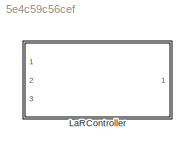
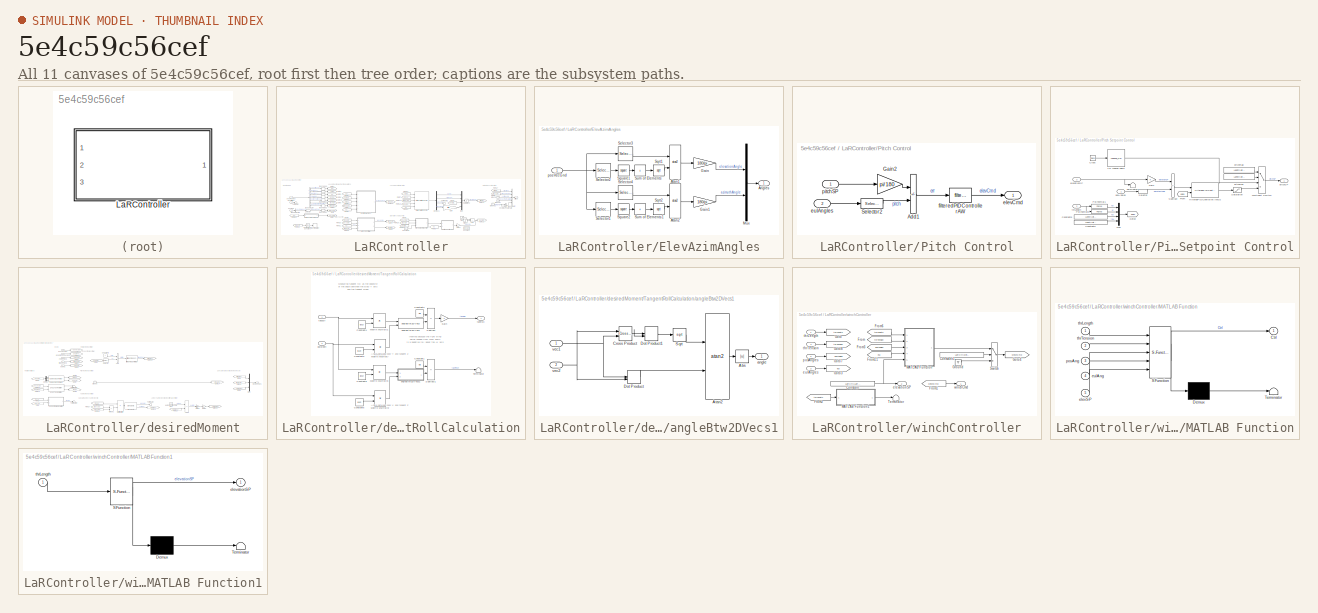
[diagram: thumbnail index - all 11 canvases of the model, root first then tree order]
MODEL slx_5e4c59c56cef
KIND library
CONFIG AbsTol = auto
CONFIG EnableMultiTasking = off
CONFIG FixedStep = auto
CONFIG MaxStep = auto
CONFIG MinStep = auto
CONFIG RelTol = 1e-3
CONFIG SampleTimeConstraint = Unconstrained
CONFIG SolverName = VariableStepAuto
CONFIG StartTime = 0.0
CONFIG StopTime = 10.0
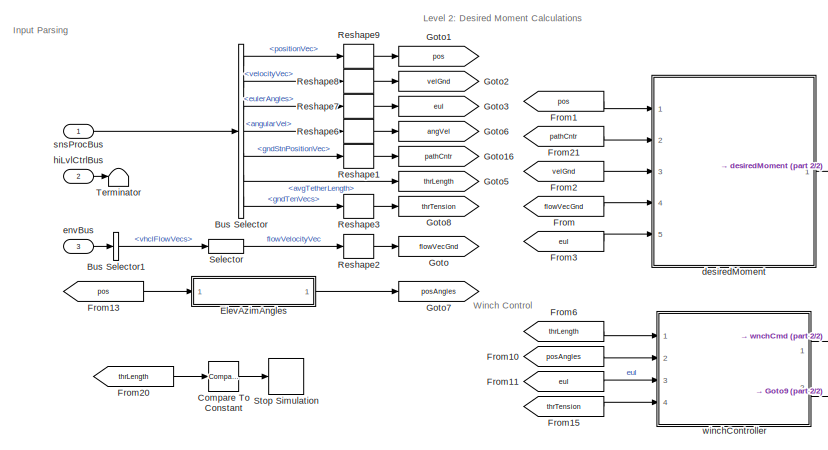
[diagram: LaRController - part 1/2, left side, full height]
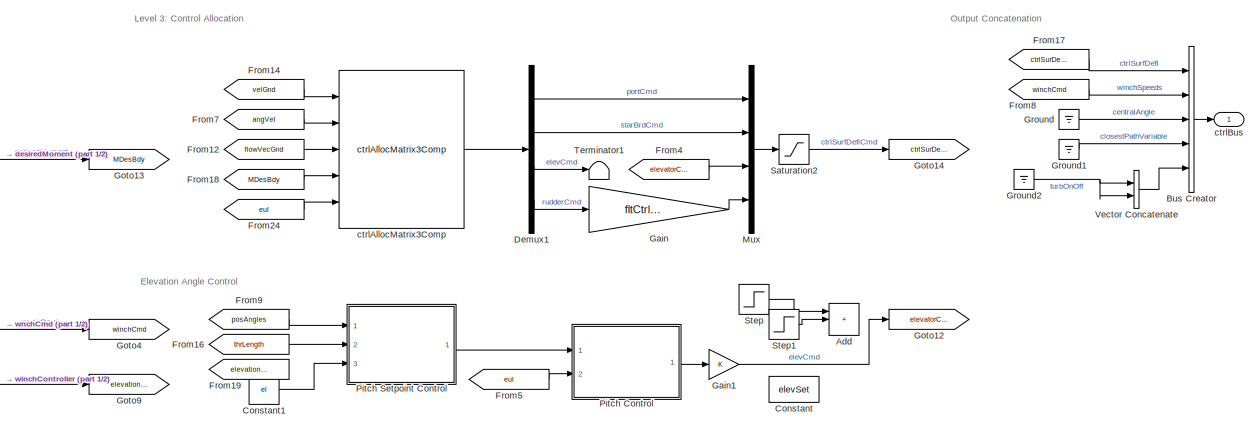
[diagram: LaRController - part 2/2, right side, full height]
BLOCK [SubSystem] LaRController
  InitFcn = initializeBussesFromBlock(gcb)
  LoadFcn = initializeBussesFromBlock(gcb)
  MinAlgLoopOccurrences = on
  Ports = [3, 1]
  RequestExecContextInheritance = off
  StartFcn = initializeBussesFromBlock(gcb)
  VariantControl = strcmpi(FLIGHTCONTROLLER,'LaRController')
BLOCK [Sum] LaRController/Add
  Commented = on
  IconShape = rectangular
  Inputs = +++
  Ports = [3, 1]
BLOCK [BusCreator] LaRController/Bus Creator
  DisplayOption = bar
  InheritFromInputs = off
  Inputs = 5
  OutDataTypeStr = Bus: fltCtrlBus
  Ports = [5, 1]
BLOCK [BusSelector] LaRController/Bus Selector
  OutputSignals = positionVec,velocityVec,eulerAngles,angularVel,gndStnPositionVec,avgTetherLength,gndTenVecs
  Ports = [1, 7]
BLOCK [BusSelector] LaRController/Bus Selector1
  OutputSignals = vhclFlowVecs
  Ports = [1, 1]
BLOCK [Reference] LaRController/Compare To Constant  REF=simulink/Logic and Bit
Operations/Compare
To Constant
  Ports = [1, 1]
  SourceBlock = simulink/Logic and Bit\nOperations/Compare\nTo Constant
  SourceProductBaseCode = SL
  SourceType = Compare To Constant
BLOCK [Constant] LaRController/Constant
  Value = elevSet
BLOCK [Constant] LaRController/Constant1
  Value = el
BLOCK [Demux] LaRController/Demux1
  Ports = [1, 4]
BLOCK [SubSystem] LaRController/ElevAzimAngles
  Ports = [1, 1]
  RequestExecContextInheritance = off
BLOCK [Outport] LaRController/ElevAzimAngles/Angles
BLOCK [Trigonometry] LaRController/ElevAzimAngles/Atan1
  Operator = atan2
  Ports = [2, 1]
BLOCK [Trigonometry] LaRController/ElevAzimAngles/Atan2
  Operator = atan2
  Ports = [2, 1]
BLOCK [Gain] LaRController/ElevAzimAngles/Gain
  Gain = 180/pi
BLOCK [Gain] LaRController/ElevAzimAngles/Gain1
  Gain = 180/pi
BLOCK [Mux] LaRController/ElevAzimAngles/Mux
  DisplayOption = bar
  Inputs = 2
  Ports = [2, 1]
BLOCK [Selector] LaRController/ElevAzimAngles/Selector1
  IndexOptions = Index vector (dialog)
  Indices = 1
  InputPortWidth = 3
  OutputSizes = 1
  Ports = [1, 1]
BLOCK [Selector] LaRController/ElevAzimAngles/Selector2
  IndexOptions = Index vector (dialog)
  Indices = [1 2]
  InputPortWidth = 3
  OutputSizes = 1
  Ports = [1, 1]
BLOCK [Selector] LaRController/ElevAzimAngles/Selector3
  IndexOptions = Index vector (dialog)
  Indices = 3
  InputPortWidth = 3
  OutputSizes = 1
  Ports = [1, 1]
BLOCK [Selector] LaRController/ElevAzimAngles/Selector4
  IndexOptions = Index vector (dialog)
  Indices = 2
  InputPortWidth = 3
  OutputSizes = 1
  Ports = [1, 1]
BLOCK [Sqrt] LaRController/ElevAzimAngles/Sqrt1
BLOCK [Sqrt] LaRController/ElevAzimAngles/Sqrt2
BLOCK [Math] LaRController/ElevAzimAngles/Square1
  Operator = square
  Ports = [1, 1]
  SignedPower = on
BLOCK [Math] LaRController/ElevAzimAngles/Square2
  Operator = square
  Ports = [1, 1]
  SignedPower = on
BLOCK [Sum] LaRController/ElevAzimAngles/Sum of Elements
  IconShape = rectangular
  Inputs = +
  Ports = [1, 1]
BLOCK [Sum] LaRController/ElevAzimAngles/Sum of Elements1
  IconShape = rectangular
  Inputs = +
  Ports = [1, 1]
BLOCK [Inport] LaRController/ElevAzimAngles/posVecGnd
BLOCK [From] LaRController/From
  GotoTag = flowVecGnd
BLOCK [From] LaRController/From1
  GotoTag = pos
BLOCK [From] LaRController/From10
  GotoTag = posAngles
BLOCK [From] LaRController/From11
  GotoTag = eul
BLOCK [From] LaRController/From12
  GotoTag = flowVecGnd
BLOCK [From] LaRController/From13
  GotoTag = pos
BLOCK [From] LaRController/From14
  GotoTag = velGnd
BLOCK [From] LaRController/From15
  GotoTag = thrTension
BLOCK [From] LaRController/From16
  GotoTag = thrLength
BLOCK [From] LaRController/From17
  GotoTag = ctrlSurDefl
BLOCK [From] LaRController/From18
  GotoTag = MDesBdy
BLOCK [From] LaRController/From19
  GotoTag = elevationSP
BLOCK [From] LaRController/From2
  GotoTag = velGnd
BLOCK [From] LaRController/From20
  GotoTag = thrLength
BLOCK [From] LaRController/From21
  GotoTag = pathCntr
BLOCK [From] LaRController/From24
  GotoTag = eul
BLOCK [From] LaRController/From3
  GotoTag = eul
BLOCK [From] LaRController/From4
  GotoTag = elevatorCmd
BLOCK [From] LaRController/From5
  GotoTag = eul
BLOCK [From] LaRController/From6
  GotoTag = thrLength
BLOCK [From] LaRController/From7
  GotoTag = angVel
BLOCK [From] LaRController/From8
  GotoTag = winchCmd
BLOCK [From] LaRController/From9
  GotoTag = posAngles
BLOCK [Gain] LaRController/Gain
  Gain = fltCtrl.rudderGain.Value
BLOCK [Gain] LaRController/Gain1
BLOCK [Goto] LaRController/Goto
  GotoTag = flowVecGnd
BLOCK [Goto] LaRController/Goto1
  GotoTag = pos
BLOCK [Goto] LaRController/Goto12
  GotoTag = elevatorCmd
BLOCK [Goto] LaRController/Goto13
  GotoTag = MDesBdy
BLOCK [Goto] LaRController/Goto14
  GotoTag = ctrlSurDefl
BLOCK [Goto] LaRController/Goto16
  GotoTag = pathCntr
BLOCK [Goto] LaRController/Goto2
  GotoTag = velGnd
BLOCK [Goto] LaRController/Goto3
  GotoTag = eul
BLOCK [Goto] LaRController/Goto4
  GotoTag = winchCmd
BLOCK [Goto] LaRController/Goto5
  GotoTag = thrLength
BLOCK [Goto] LaRController/Goto6
  GotoTag = angVel
BLOCK [Goto] LaRController/Goto7
  GotoTag = posAngles
BLOCK [Goto] LaRController/Goto8
  GotoTag = thrTension
BLOCK [Goto] LaRController/Goto9
  GotoTag = elevationSP
BLOCK [Ground] LaRController/Ground
BLOCK [Ground] LaRController/Ground1
BLOCK [Ground] LaRController/Ground2
BLOCK [Mux] LaRController/Mux
  DisplayOption = bar
  Ports = [4, 1]
BLOCK [SubSystem] LaRController/Pitch Control
  Ports = [2, 1]
  RequestExecContextInheritance = off
BLOCK [Sum] LaRController/Pitch Control/Add1
  IconShape = rectangular
  Inputs = -+
  Ports = [2, 1]
BLOCK [Gain] LaRController/Pitch Control/Gain2
  Gain = pi/180
BLOCK [Selector] LaRController/Pitch Control/Selector2
  IndexOptions = Index vector (dialog)
  Indices = 2
  InputPortWidth = 3
  OutputSizes = 1
  Ports = [1, 1]
BLOCK [Outport] LaRController/Pitch Control/elevCmd
BLOCK [Inport] LaRController/Pitch Control/eulAngles
  Port = 2
BLOCK [Reference] LaRController/Pitch Control/filteredPIDControllerAW  REF=filteredPIDControllerAW_ul/filteredPIDControllerAW
  Ports = [1, 1]
  SourceBlock = filteredPIDControllerAW_ul/filteredPIDControllerAW
BLOCK [Inport] LaRController/Pitch Control/pitchSP
BLOCK [SubSystem] LaRController/Pitch Setpoint Control
  Ports = [3, 1]
  RequestExecContextInheritance = off
BLOCK [Lookup_n-D] LaRController/Pitch Setpoint Control/1-D Lookup Table
  BreakpointsForDimension1 = LaRCtrl.pitchTime.Value
  InputPortMap = u0
  InternalRulePriority = Speed
  InterpMethod = Flat
  NumberOfTableDimensions = 1
  Ports = [1, 1]
  RndMeth = Simplest
  Table = LaRCtrl.pitchLookup.Value
BLOCK [Clock] LaRController/Pitch Setpoint Control/Clock
BLOCK [Constant] LaRController/Pitch Setpoint Control/Constant5
  Value = LaRCtrl.pitchSP.kd.Value
BLOCK [Constant] LaRController/Pitch Setpoint Control/Constant6
  Value = LaRCtrl.pitchSP.tau.Value
BLOCK [From] LaRController/Pitch Setpoint Control/From
  GotoTag = gains
BLOCK [Gain] LaRController/Pitch Setpoint Control/Gain
BLOCK [Goto] LaRController/Pitch Setpoint Control/Goto2
  GotoTag = gains
BLOCK [MultiPortSwitch] LaRController/Pitch Setpoint Control/Multiport Switch
  DataPortIndices = {0,1,2}
  DataPortOrder = Specify indices
  InputSameDT = off
  Inputs = 2
  Ports = [4, 1]
  SaturateOnIntegerOverflow = off
BLOCK [Mux] LaRController/Pitch Setpoint Control/Mux
  DisplayOption = bar
  Ports = [4, 1]
BLOCK [Polyval] LaRController/Pitch Setpoint Control/Polynomial1
  Coefs = [LaRCtrl.pitchSPkpSlope.Value LaRCtrl.pitchSPkpInt.Value]
BLOCK [Polyval] LaRController/Pitch Setpoint Control/Polynomial2
  Coefs = [LaRCtrl.pitchSPkiSlope.Value LaRCtrl.pitchSPkiInt.Value]
BLOCK [Saturate] LaRController/Pitch Setpoint Control/Saturation
  LowerLimit = LaRCtrl.pitchAngleMax.lowerLimit.Value
  UpperLimit = LaRCtrl.pitchAngleMax.upperLimit.Value
BLOCK [Selector] LaRController/Pitch Setpoint Control/Selector
  IndexOptions = Index vector (dialog)
  Indices = 1
  InputPortWidth = 2
  OutputSizes = 1
  Ports = [1, 1]
BLOCK [Sum] LaRController/Pitch Setpoint Control/Subtract
  IconShape = rectangular
  Inputs = +-
  Ports = [2, 1]
BLOCK [Terminator] LaRController/Pitch Setpoint Control/Terminator2
BLOCK [Inport] LaRController/Pitch Setpoint Control/elevationSP
  Port = 3
BLOCK [Reference] LaRController/Pitch Setpoint Control/filteredPIDControllerAWGS  REF=filteredPIDControllerAWGS_ul/filteredPIDControllerAWGS
  Ports = [2, 1]
  SourceBlock = filteredPIDControllerAWGS_ul/filteredPIDControllerAWGS
BLOCK [Constant] LaRController/Pitch Setpoint Control/pitchDes
  Value = LaRCtrl.pitchConst.Value
BLOCK [Constant] LaRController/Pitch Setpoint Control/pitchFlag
  Value = LaRCtrl.pitchCtrl.Value
BLOCK [Outport] LaRController/Pitch Setpoint Control/pitchSP
BLOCK [Inport] LaRController/Pitch Setpoint Control/posAngles
BLOCK [Inport] LaRController/Pitch Setpoint Control/thrLength
  Port = 2
BLOCK [Reshape] LaRController/Reshape1
  OutputDimensionality = Column vector (2-D)
  Ports = [1, 1]
BLOCK [Reshape] LaRController/Reshape2
  OutputDimensionality = Column vector (2-D)
  Ports = [1, 1]
BLOCK [Reshape] LaRController/Reshape3
  OutputDimensionality = Column vector (2-D)
  Ports = [1, 1]
BLOCK [Reshape] LaRController/Reshape6
  OutputDimensionality = Column vector (2-D)
  Ports = [1, 1]
BLOCK [Reshape] LaRController/Reshape7
  OutputDimensionality = Column vector (2-D)
  Ports = [1, 1]
BLOCK [Reshape] LaRController/Reshape8
  OutputDimensionality = Column vector (2-D)
  Ports = [1, 1]
BLOCK [Reshape] LaRController/Reshape9
  OutputDimensionality = Column vector (2-D)
  Ports = [1, 1]
BLOCK [Saturate] LaRController/Saturation2
  LowerLimit = LaRCtrl.controlSigMax.lowerLimit.Value
  UpperLimit = LaRCtrl.controlSigMax.upperLimit.Value
BLOCK [Selector] LaRController/Selector
  IndexOptions = Select all,Index vector (dialog)
  Indices = [1 3],5
  InputPortWidth = 3
  NumberOfDimensions = 2
  OutputSizes = 1,1
  Ports = [1, 1]
BLOCK [Step] LaRController/Step
  After = 0
  Commented = on
  SampleTime = 0
  Time = 200
BLOCK [Step] LaRController/Step1
  After = 0
  Commented = on
  SampleTime = 0
  Time = 210
BLOCK [Stop] LaRController/Stop Simulation
BLOCK [Terminator] LaRController/Terminator
BLOCK [Terminator] LaRController/Terminator1
BLOCK [Concatenate] LaRController/Vector Concatenate
  Ports = [2, 1]
BLOCK [Reference] LaRController/ctrlAllocMatrix3Comp  REF=ctrlAllocMatrix3Comp_cl/ctrlAllocMatrix3Comp
  Ports = [5, 1]
  SourceBlock = ctrlAllocMatrix3Comp_cl/ctrlAllocMatrix3Comp
BLOCK [Outport] LaRController/ctrlBus
  OutDataTypeStr = Bus: fltCtrlBus
  VectorParamsAs1DForOutWhenUnconnected = off
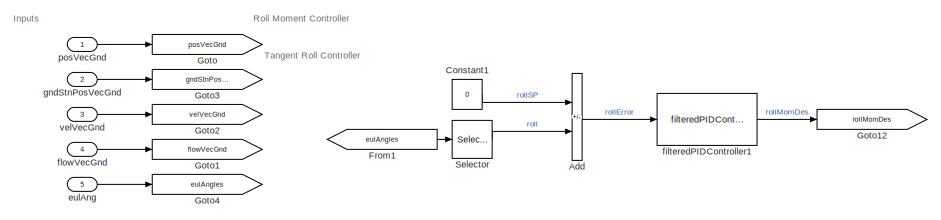
[diagram: LaRController/desiredMoment - part 1/4, top center region]
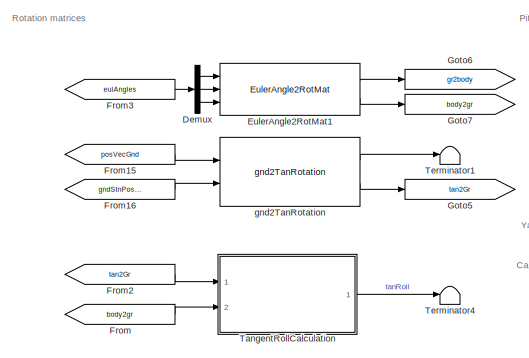
[diagram: LaRController/desiredMoment - part 2/4, middle left region]
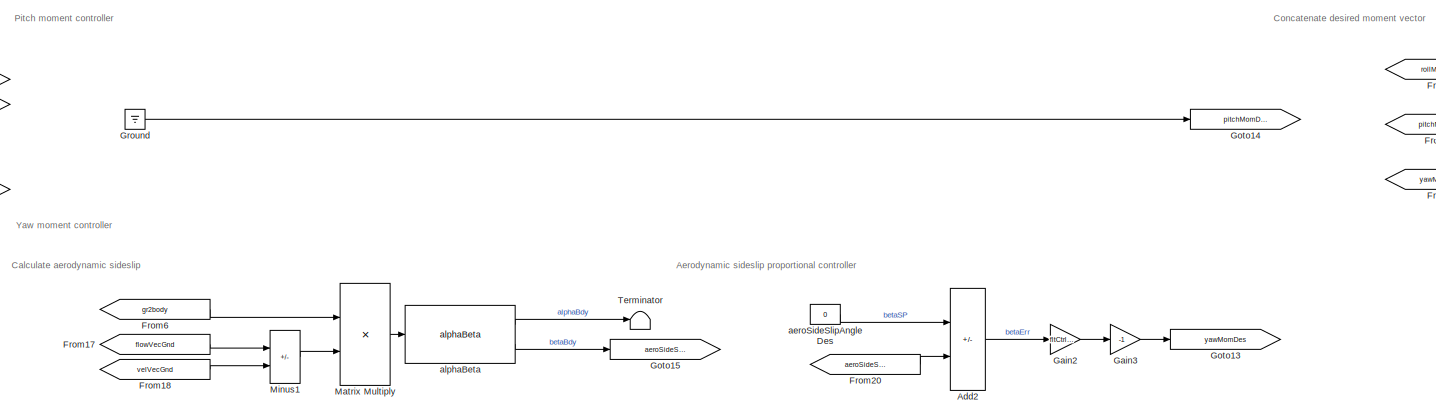
[diagram: LaRController/desiredMoment - part 3/4, bottom center region]
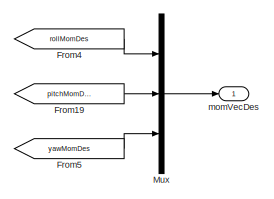
[diagram: LaRController/desiredMoment - part 4/4, middle right region]
BLOCK [SubSystem] LaRController/desiredMoment
  Ports = [5, 1]
  RequestExecContextInheritance = off
BLOCK [Sum] LaRController/desiredMoment/Add
  IconShape = rectangular
  Inputs = +-
  Ports = [2, 1]
BLOCK [Sum] LaRController/desiredMoment/Add2
  IconShape = rectangular
  Inputs = +-
  Ports = [2, 1]
BLOCK [Constant] LaRController/desiredMoment/Constant1
  Value = 0
BLOCK [Demux] LaRController/desiredMoment/Demux
  Outputs = 3
  Ports = [1, 3]
BLOCK [Reference] LaRController/desiredMoment/EulerAngle2RotMat1  REF=eulAng2RotMat_ul/EulerAngle2RotMat
  Ports = [3, 2]
  SourceBlock = eulAng2RotMat_ul/EulerAngle2RotMat
  SourceType = SubSystem
BLOCK [From] LaRController/desiredMoment/From
  GotoTag = body2gr
BLOCK [From] LaRController/desiredMoment/From1
  GotoTag = eulAngles
BLOCK [From] LaRController/desiredMoment/From15
  GotoTag = posVecGnd
BLOCK [From] LaRController/desiredMoment/From16
  GotoTag = gndStnPosVecGnd
BLOCK [From] LaRController/desiredMoment/From17
  GotoTag = flowVecGnd
BLOCK [From] LaRController/desiredMoment/From18
  GotoTag = velVecGnd
BLOCK [From] LaRController/desiredMoment/From19
  GotoTag = pitchMomDes
BLOCK [From] LaRController/desiredMoment/From2
  GotoTag = tan2Gr
BLOCK [From] LaRController/desiredMoment/From20
  GotoTag = aeroSideSlipAngle
BLOCK [From] LaRController/desiredMoment/From3
  GotoTag = eulAngles
BLOCK [From] LaRController/desiredMoment/From4
  GotoTag = rollMomDes
BLOCK [From] LaRController/desiredMoment/From5
  GotoTag = yawMomDes
BLOCK [From] LaRController/desiredMoment/From6
  GotoTag = gr2body
BLOCK [Gain] LaRController/desiredMoment/Gain2
  Gain = fltCtrl.yawMoment.kp.Value
BLOCK [Gain] LaRController/desiredMoment/Gain3
  Gain = -1
BLOCK [Goto] LaRController/desiredMoment/Goto
  GotoTag = posVecGnd
BLOCK [Goto] LaRController/desiredMoment/Goto1
  GotoTag = flowVecGnd
BLOCK [Goto] LaRController/desiredMoment/Goto12
  GotoTag = rollMomDes
BLOCK [Goto] LaRController/desiredMoment/Goto13
  GotoTag = yawMomDes
BLOCK [Goto] LaRController/desiredMoment/Goto14
  GotoTag = pitchMomDes
BLOCK [Goto] LaRController/desiredMoment/Goto15
  GotoTag = aeroSideSlipAngle
BLOCK [Goto] LaRController/desiredMoment/Goto2
  GotoTag = velVecGnd
BLOCK [Goto] LaRController/desiredMoment/Goto3
  GotoTag = gndStnPosVecGnd
BLOCK [Goto] LaRController/desiredMoment/Goto4
  GotoTag = eulAngles
BLOCK [Goto] LaRController/desiredMoment/Goto5
  GotoTag = tan2Gr
BLOCK [Goto] LaRController/desiredMoment/Goto6
  GotoTag = gr2body
BLOCK [Goto] LaRController/desiredMoment/Goto7
  GotoTag = body2gr
BLOCK [Ground] LaRController/desiredMoment/Ground
BLOCK [Product] LaRController/desiredMoment/Matrix Multiply
  Multiplication = Matrix(*)
  Ports = [2, 1]
BLOCK [Sum] LaRController/desiredMoment/Minus1
  IconShape = rectangular
  Inputs = +-
  Ports = [2, 1]
BLOCK [Mux] LaRController/desiredMoment/Mux
  DisplayOption = bar
  Inputs = 3
  Ports = [3, 1]
BLOCK [Selector] LaRController/desiredMoment/Selector
  IndexOptions = Index vector (dialog)
  Indices = 1
  InputPortWidth = 3
  OutputSizes = 1
  Ports = [1, 1]
BLOCK [SubSystem] LaRController/desiredMoment/TangentRollCalculation
  Ports = [2, 1]
  RequestExecContextInheritance = off
BLOCK [Constant] LaRController/desiredMoment/TangentRollCalculation/Constant1
  Value = pi/2
BLOCK [Constant] LaRController/desiredMoment/TangentRollCalculation/Constant2
  Value = pi/2
BLOCK [Constant] LaRController/desiredMoment/TangentRollCalculation/Constant3
  Value = [0 1 0]'
BLOCK [Constant] LaRController/desiredMoment/TangentRollCalculation/Constant4
  Value = [0 0 1]'
BLOCK [Constant] LaRController/desiredMoment/TangentRollCalculation/Constant5
  Value = [1 0 0]'
BLOCK [Constant] LaRController/desiredMoment/TangentRollCalculation/Constant6
  Value = [0 0 1]'
BLOCK [Gain] LaRController/desiredMoment/TangentRollCalculation/Gain
  Gain = -1
BLOCK [Product] LaRController/desiredMoment/TangentRollCalculation/Matrix Multiply
  Multiplication = Matrix(*)
  Ports = [2, 1]
BLOCK [Product] LaRController/desiredMoment/TangentRollCalculation/Matrix Multiply1
  Multiplication = Matrix(*)
  Ports = [2, 1]
BLOCK [Product] LaRController/desiredMoment/TangentRollCalculation/Matrix Multiply2
  Multiplication = Matrix(*)
  Ports = [2, 1]
BLOCK [Product] LaRController/desiredMoment/TangentRollCalculation/Matrix Multiply3
  Multiplication = Matrix(*)
  Ports = [2, 1]
BLOCK [Sum] LaRController/desiredMoment/TangentRollCalculation/Subtract
  IconShape = rectangular
  Inputs = +-
  Ports = [2, 1]
BLOCK [Sum] LaRController/desiredMoment/TangentRollCalculation/Subtract1
  IconShape = rectangular
  Inputs = +-
  Ports = [2, 1]
BLOCK [Terminator] LaRController/desiredMoment/TangentRollCalculation/Terminator
BLOCK [Reference] LaRController/desiredMoment/TangentRollCalculation/angleBtw2DVecs  REF=angleBtw2Vecs_ul/angleBtw2DVecs
  Ports = [2, 1]
  SourceBlock = angleBtw2Vecs_ul/angleBtw2DVecs
  SourceType = SubSystem
BLOCK [SubSystem] LaRController/desiredMoment/TangentRollCalculation/angleBtw2DVecs1
  Ports = [2, 1]
  RequestExecContextInheritance = off
BLOCK [Abs] LaRController/desiredMoment/TangentRollCalculation/angleBtw2DVecs1/Abs
  SaturateOnIntegerOverflow = off
BLOCK [Trigonometry] LaRController/desiredMoment/TangentRollCalculation/angleBtw2DVecs1/Atan2
  Operator = atan2
  Ports = [2, 1]
BLOCK [Reference] LaRController/desiredMoment/TangentRollCalculation/angleBtw2DVecs1/Cross Product  REF=vrlib/Utilities/Cross Product
  Ports = [2, 1]
  SourceBlock = vrlib/Utilities/Cross Product
  SourceProductBaseCode = SL
  SourceType = Cross Product
BLOCK [DotProduct] LaRController/desiredMoment/TangentRollCalculation/angleBtw2DVecs1/Dot Product
  OutDataTypeStr = Inherit: Inherit via internal rule
BLOCK [DotProduct] LaRController/desiredMoment/TangentRollCalculation/angleBtw2DVecs1/Dot Product1
  OutDataTypeStr = Inherit: Inherit via internal rule
BLOCK [Sqrt] LaRController/desiredMoment/TangentRollCalculation/angleBtw2DVecs1/Sqrt
BLOCK [Outport] LaRController/desiredMoment/TangentRollCalculation/angleBtw2DVecs1/angle
  VectorParamsAs1DForOutWhenUnconnected = off
BLOCK [Inport] LaRController/desiredMoment/TangentRollCalculation/angleBtw2DVecs1/vec1
BLOCK [Inport] LaRController/desiredMoment/TangentRollCalculation/angleBtw2DVecs1/vec2
  Port = 2
BLOCK [Inport] LaRController/desiredMoment/TangentRollCalculation/bdy2Inert
  Port = 2
BLOCK [Inport] LaRController/desiredMoment/TangentRollCalculation/tan2Gr
BLOCK [Outport] LaRController/desiredMoment/TangentRollCalculation/tanRoll
  VectorParamsAs1DForOutWhenUnconnected = off
BLOCK [Terminator] LaRController/desiredMoment/Terminator
BLOCK [Terminator] LaRController/desiredMoment/Terminator1
BLOCK [Terminator] LaRController/desiredMoment/Terminator4
BLOCK [Constant] LaRController/desiredMoment/aeroSideSlipAngleDes
  Value = 0
BLOCK [Reference] LaRController/desiredMoment/alphaBeta  REF=alphaBeta_ul/alphaBeta
  Ports = [1, 2]
  SourceBlock = alphaBeta_ul/alphaBeta
  SourceType = SubSystem
BLOCK [Inport] LaRController/desiredMoment/eulAng
  Port = 5
BLOCK [Reference] LaRController/desiredMoment/filteredPIDController1  REF=filteredPIDController_ul/filteredPIDController
  Ports = [1, 1]
  SourceBlock = filteredPIDController_ul/filteredPIDController
BLOCK [Inport] LaRController/desiredMoment/flowVecGnd
  Port = 4
BLOCK [Reference] LaRController/desiredMoment/gnd2TanRotation  REF=gnd2TanRotation_ul/gnd2TanRotation
  Ports = [2, 2]
  SourceBlock = gnd2TanRotation_ul/gnd2TanRotation
  SourceType = SubSystem
BLOCK [Inport] LaRController/desiredMoment/gndStnPosVecGnd
  Port = 2
BLOCK [Outport] LaRController/desiredMoment/momVecDes
  VectorParamsAs1DForOutWhenUnconnected = off
BLOCK [Inport] LaRController/desiredMoment/posVecGnd
BLOCK [Inport] LaRController/desiredMoment/velVecGnd
  Port = 3
BLOCK [Inport] LaRController/envBus
  OutDataTypeStr = Bus: envBus
  Port = 3
BLOCK [Inport] LaRController/hiLvlCtrlBus
  OutDataTypeStr = Bus: hiLvlCtrlBus
  Port = 2
BLOCK [Inport] LaRController/snsProcBus
  OutDataTypeStr = Bus: sensorsProcessingBus
BLOCK [SubSystem] LaRController/winchController
  Commented = on
  Ports = [4, 2]
  RequestExecContextInheritance = off
BLOCK [Constant] LaRController/winchController/Constant
  Value = LaRCtrl.LaRelevationSP.Value
BLOCK [Constant] LaRController/winchController/Constant1
  Value = LaRCtrl.winchActive.Value
BLOCK [From] LaRController/winchController/From
  GotoTag = thrTension
BLOCK [From] LaRController/winchController/From1
  GotoTag = winchCmd
BLOCK [From] LaRController/winchController/From11
  GotoTag = eul
BLOCK [From] LaRController/winchController/From2
  GotoTag = thrLength
BLOCK [From] LaRController/winchController/From3
  GotoTag = posAngles
BLOCK [From] LaRController/winchController/From6
  GotoTag = thrLength
BLOCK [Goto] LaRController/winchController/Goto
  GotoTag = thrLength
BLOCK [Goto] LaRController/winchController/Goto3
  GotoTag = eul
BLOCK [Goto] LaRController/winchController/Goto4
  GotoTag = winchCmd
BLOCK [Goto] LaRController/winchController/Goto7
  GotoTag = posAngles
BLOCK [Goto] LaRController/winchController/Goto8
  GotoTag = thrTension
BLOCK [Ground] LaRController/winchController/Ground
BLOCK [SubSystem] LaRController/winchController/MATLAB Function
  ErrorFcn = Stateflow.Translate.translate
  PermitHierarchicalResolution = ExplicitOnly
  Ports = [5, 1]
  RequestExecContextInheritance = off
  SFBlockType = MATLAB Function
  TreatAsAtomicUnit = on
BLOCK [Demux] LaRController/winchController/MATLAB Function/ Demux 
  Outputs = 1
  Ports = [1, 1]
BLOCK [S-Function] LaRController/winchController/MATLAB Function/ SFunction 
  EnableBusSupport = off
  FunctionName = sf_sfun
  Parameters = coneWidth,leash,spd
  PortCounts = [5 2]
  Ports = [5, 2]
  SFcnIsStateOwnerBlock = off
  SFunctionDeploymentMode = off
  Tag = Stateflow S-Function 2
BLOCK [Terminator] LaRController/winchController/MATLAB Function/ Terminator 
BLOCK [Outport] LaRController/winchController/MATLAB Function/Ctrl
BLOCK [Inport] LaRController/winchController/MATLAB Function/elevSP
  Port = 5
BLOCK [Inport] LaRController/winchController/MATLAB Function/eulAng
  Port = 4
BLOCK [Inport] LaRController/winchController/MATLAB Function/posAng
  Port = 3
BLOCK [Inport] LaRController/winchController/MATLAB Function/thrLength
BLOCK [Inport] LaRController/winchController/MATLAB Function/thrTension
  Port = 2
BLOCK [SubSystem] LaRController/winchController/MATLAB Function1
  ErrorFcn = Stateflow.Translate.translate
  PermitHierarchicalResolution = ExplicitOnly
  Ports = [1, 1]
  RequestExecContextInheritance = off
  SFBlockType = MATLAB Function
  TreatAsAtomicUnit = on
BLOCK [Demux] LaRController/winchController/MATLAB Function1/ Demux 
  Outputs = 1
  Ports = [1, 1]
BLOCK [S-Function] LaRController/winchController/MATLAB Function1/ SFunction 
  EnableBusSupport = off
  FunctionName = sf_sfun
  Parameters = elevSP1,elevSP2
  PortCounts = [1 2]
  Ports = [1, 2]
  SFcnIsStateOwnerBlock = off
  SFunctionDeploymentMode = off
  Tag = Stateflow S-Function 1
BLOCK [Terminator] LaRController/winchController/MATLAB Function1/ Terminator 
BLOCK [Outport] LaRController/winchController/MATLAB Function1/elevationSP
BLOCK [Inport] LaRController/winchController/MATLAB Function1/thrLength
BLOCK [Switch] LaRController/winchController/Switch
  Criteria = u2 > Threshold
  InputSameDT = off
  SaturateOnIntegerOverflow = off
  Threshold = .5
BLOCK [Terminator] LaRController/winchController/Terminator
BLOCK [Outport] LaRController/winchController/elevationSP
  Port = 2
BLOCK [Inport] LaRController/winchController/eulAngles
  Port = 3
BLOCK [Inport] LaRController/winchController/posAngles
  Port = 2
BLOCK [Inport] LaRController/winchController/thrLength
BLOCK [Inport] LaRController/winchController/thrTension
  Port = 4
BLOCK [Outport] LaRController/winchController/winchCmd
ANNOTATION LaRController: Elevation Angle Control
ANNOTATION LaRController: Input Parsing
ANNOTATION LaRController: Level 2: Desired Moment Calculations
ANNOTATION LaRController: Level 3: Control Allocation
ANNOTATION LaRController: Output Concatenation
ANNOTATION LaRController: Winch Control
ANNOTATION LaRController/desiredMoment: Aerodynamic sideslip proportional controller
ANNOTATION LaRController/desiredMoment: Calculate aerodynamic sideslip
ANNOTATION LaRController/desiredMoment: Concatenate desired moment vector
ANNOTATION LaRController/desiredMoment: Inputs
ANNOTATION LaRController/desiredMoment: Pitch moment controller
ANNOTATION LaRController/desiredMoment: Roll Moment Controller
ANNOTATION LaRController/desiredMoment: Rotation matrices
ANNOTATION LaRController/desiredMoment: Tangent Roll Controller
ANNOTATION LaRController/desiredMoment: Yaw moment controller
ANNOTATION LaRController/desiredMoment/TangentRollCalculation: Measuring tangent roll as the opposite of the angle between the Body Y axis and the tangent plane
ANNOTATION LaRController/desiredMoment/TangentRollCalculation: Angle between body X and tangent Z
ANNOTATION LaRController/desiredMoment/TangentRollCalculation: Angle between body Y and tangent Z
ANNOTATION LaRController/desiredMoment/TangentRollCalculation: Inverted because the right wing being <90deg from Local down is a negative roll about the +X axis
LINE LaRController/Bus Creator:1 -> LaRController/ctrlBus:1
LINE LaRController/Bus Selector1:1 -> LaRController/Selector:1
LINE LaRController/Bus Selector:1 -> LaRController/Reshape9:1
LINE LaRController/Bus Selector:2 -> LaRController/Reshape8:1
LINE LaRController/Bus Selector:3 -> LaRController/Reshape7:1
LINE LaRController/Bus Selector:4 -> LaRController/Reshape6:1
LINE LaRController/Bus Selector:5 -> LaRController/Reshape1:1
LINE LaRController/Bus Selector:6 -> LaRController/Goto5:1
LINE LaRController/Bus Selector:7 -> LaRController/Reshape3:1
LINE LaRController/Compare To Constant:1 -> LaRController/Stop Simulation:1
LINE LaRController/Constant1:1 -> LaRController/Pitch Setpoint Control:3
LINE LaRController/Demux1:1 -> LaRController/Mux:1
LINE LaRController/Demux1:2 -> LaRController/Mux:2
LINE LaRController/Demux1:3 -> LaRController/Terminator1:1
LINE LaRController/Demux1:4 -> LaRController/Gain:1
LINE LaRController/ElevAzimAngles/Atan1:1 -> LaRController/ElevAzimAngles/Gain:1
LINE LaRController/ElevAzimAngles/Atan2:1 -> LaRController/ElevAzimAngles/Gain1:1
LINE LaRController/ElevAzimAngles/Gain1:1 -> LaRController/ElevAzimAngles/Mux:2
LINE LaRController/ElevAzimAngles/Gain:1 -> LaRController/ElevAzimAngles/Mux:1
LINE LaRController/ElevAzimAngles/Mux:1 -> LaRController/ElevAzimAngles/Angles:1
LINE LaRController/ElevAzimAngles/Selector1:1 -> LaRController/ElevAzimAngles/Square2:1
LINE LaRController/ElevAzimAngles/Selector2:1 -> LaRController/ElevAzimAngles/Square1:1
LINE LaRController/ElevAzimAngles/Selector3:1 -> LaRController/ElevAzimAngles/Atan1:1
LINE LaRController/ElevAzimAngles/Selector4:1 -> LaRController/ElevAzimAngles/Atan2:1
LINE LaRController/ElevAzimAngles/Sqrt1:1 -> LaRController/ElevAzimAngles/Atan1:2
LINE LaRController/ElevAzimAngles/Sqrt2:1 -> LaRController/ElevAzimAngles/Atan2:2
LINE LaRController/ElevAzimAngles/Square1:1 -> LaRController/ElevAzimAngles/Sum of Elements:1
LINE LaRController/ElevAzimAngles/Square2:1 -> LaRController/ElevAzimAngles/Sum of Elements1:1
LINE LaRController/ElevAzimAngles/Sum of Elements1:1 -> LaRController/ElevAzimAngles/Sqrt2:1
LINE LaRController/ElevAzimAngles/Sum of Elements:1 -> LaRController/ElevAzimAngles/Sqrt1:1
NET LaRController/ElevAzimAngles/posVecGnd:1 -> LaRController/ElevAzimAngles/Selector1:1, LaRController/ElevAzimAngles/Selector2:1, LaRController/ElevAzimAngles/Selector3:1, LaRController/ElevAzimAngles/Selector4:1
LINE LaRController/ElevAzimAngles:1 -> LaRController/Goto7:1
LINE LaRController/From10:1 -> LaRController/winchController:2
LINE LaRController/From11:1 -> LaRController/winchController:3
LINE LaRController/From12:1 -> LaRController/ctrlAllocMatrix3Comp:3
LINE LaRController/From13:1 -> LaRController/ElevAzimAngles:1
LINE LaRController/From14:1 -> LaRController/ctrlAllocMatrix3Comp:1
LINE LaRController/From15:1 -> LaRController/winchController:4
LINE LaRController/From16:1 -> LaRController/Pitch Setpoint Control:2
LINE LaRController/From17:1 -> LaRController/Bus Creator:1
LINE LaRController/From18:1 -> LaRController/ctrlAllocMatrix3Comp:4
LINE LaRController/From1:1 -> LaRController/desiredMoment:1
LINE LaRController/From20:1 -> LaRController/Compare To Constant:1
LINE LaRController/From21:1 -> LaRController/desiredMoment:2
LINE LaRController/From24:1 -> LaRController/ctrlAllocMatrix3Comp:5
LINE LaRController/From2:1 -> LaRController/desiredMoment:3
LINE LaRController/From3:1 -> LaRController/desiredMoment:5
LINE LaRController/From4:1 -> LaRController/Mux:3
LINE LaRController/From5:1 -> LaRController/Pitch Control:2
LINE LaRController/From6:1 -> LaRController/winchController:1
LINE LaRController/From7:1 -> LaRController/ctrlAllocMatrix3Comp:2
LINE LaRController/From8:1 -> LaRController/Bus Creator:2
LINE LaRController/From9:1 -> LaRController/Pitch Setpoint Control:1
LINE LaRController/From:1 -> LaRController/desiredMoment:4
LINE LaRController/Gain1:1 -> LaRController/Goto12:1
LINE LaRController/Gain:1 -> LaRController/Mux:4
LINE LaRController/Ground1:1 -> LaRController/Bus Creator:4
NET LaRController/Ground2:1 -> LaRController/Vector Concatenate:1, LaRController/Vector Concatenate:2
LINE LaRController/Ground:1 -> LaRController/Bus Creator:3
LINE LaRController/Mux:1 -> LaRController/Saturation2:1
LINE LaRController/Pitch Control/Add1:1 -> LaRController/Pitch Control/filteredPIDControllerAW:1
LINE LaRController/Pitch Control/Gain2:1 -> LaRController/Pitch Control/Add1:1
LINE LaRController/Pitch Control/Selector2:1 -> LaRController/Pitch Control/Add1:2
LINE LaRController/Pitch Control/eulAngles:1 -> LaRController/Pitch Control/Selector2:1
LINE LaRController/Pitch Control/filteredPIDControllerAW:1 -> LaRController/Pitch Control/elevCmd:1
LINE LaRController/Pitch Control/pitchSP:1 -> LaRController/Pitch Control/Gain2:1
LINE LaRController/Pitch Control:1 -> LaRController/Gain1:1
LINE LaRController/Pitch Setpoint Control/1-D Lookup Table:1 -> LaRController/Pitch Setpoint Control/Multiport Switch:3
LINE LaRController/Pitch Setpoint Control/Clock:1 -> LaRController/Pitch Setpoint Control/1-D Lookup Table:1
LINE LaRController/Pitch Setpoint Control/Constant5:1 -> LaRController/Pitch Setpoint Control/Mux:3
LINE LaRController/Pitch Setpoint Control/Constant6:1 -> LaRController/Pitch Setpoint Control/Mux:4
LINE LaRController/Pitch Setpoint Control/From:1 -> LaRController/Pitch Setpoint Control/filteredPIDControllerAWGS:2
LINE LaRController/Pitch Setpoint Control/Gain:1 -> LaRController/Pitch Setpoint Control/Subtract:1
LINE LaRController/Pitch Setpoint Control/Multiport Switch:1 -> LaRController/Pitch Setpoint Control/pitchSP:1
LINE LaRController/Pitch Setpoint Control/Mux:1 -> LaRController/Pitch Setpoint Control/Goto2:1
LINE LaRController/Pitch Setpoint Control/Polynomial1:1 -> LaRController/Pitch Setpoint Control/Mux:1
LINE LaRController/Pitch Setpoint Control/Polynomial2:1 -> LaRController/Pitch Setpoint Control/Mux:2
LINE LaRController/Pitch Setpoint Control/Saturation:1 -> LaRController/Pitch Setpoint Control/Multiport Switch:4
LINE LaRController/Pitch Setpoint Control/Selector:1 -> LaRController/Pitch Setpoint Control/Subtract:2
LINE LaRController/Pitch Setpoint Control/Subtract:1 -> LaRController/Pitch Setpoint Control/filteredPIDControllerAWGS:1
NET LaRController/Pitch Setpoint Control/elevationSP:1 -> LaRController/Pitch Setpoint Control/Gain:1, LaRController/Pitch Setpoint Control/Terminator2:1
LINE LaRController/Pitch Setpoint Control/filteredPIDControllerAWGS:1 -> LaRController/Pitch Setpoint Control/Saturation:1
LINE LaRController/Pitch Setpoint Control/pitchDes:1 -> LaRController/Pitch Setpoint Control/Multiport Switch:2
LINE LaRController/Pitch Setpoint Control/pitchFlag:1 -> LaRController/Pitch Setpoint Control/Multiport Switch:1
LINE LaRController/Pitch Setpoint Control/posAngles:1 -> LaRController/Pitch Setpoint Control/Selector:1
NET LaRController/Pitch Setpoint Control/thrLength:1 -> LaRController/Pitch Setpoint Control/Polynomial1:1, LaRController/Pitch Setpoint Control/Polynomial2:1
LINE LaRController/Pitch Setpoint Control:1 -> LaRController/Pitch Control:1
LINE LaRController/Reshape1:1 -> LaRController/Goto16:1
LINE LaRController/Reshape2:1 -> LaRController/Goto:1
LINE LaRController/Reshape3:1 -> LaRController/Goto8:1
LINE LaRController/Reshape6:1 -> LaRController/Goto6:1
LINE LaRController/Reshape7:1 -> LaRController/Goto3:1
LINE LaRController/Reshape8:1 -> LaRController/Goto2:1
LINE LaRController/Reshape9:1 -> LaRController/Goto1:1
LINE LaRController/Saturation2:1 -> LaRController/Goto14:1
LINE LaRController/Selector:1 -> LaRController/Reshape2:1
LINE LaRController/Step1:1 -> LaRController/Add:2
LINE LaRController/Step:1 -> LaRController/Add:1
LINE LaRController/Vector Concatenate:1 -> LaRController/Bus Creator:5
LINE LaRController/ctrlAllocMatrix3Comp:1 -> LaRController/Demux1:1
LINE LaRController/desiredMoment/Add2:1 -> LaRController/desiredMoment/Gain2:1
LINE LaRController/desiredMoment/Add:1 -> LaRController/desiredMoment/filteredPIDController1:1
LINE LaRController/desiredMoment/Constant1:1 -> LaRController/desiredMoment/Add:1
LINE LaRController/desiredMoment/Demux:1 -> LaRController/desiredMoment/EulerAngle2RotMat1:1
LINE LaRController/desiredMoment/Demux:2 -> LaRController/desiredMoment/EulerAngle2RotMat1:2
LINE LaRController/desiredMoment/Demux:3 -> LaRController/desiredMoment/EulerAngle2RotMat1:3
LINE LaRController/desiredMoment/EulerAngle2RotMat1:1 -> LaRController/desiredMoment/Goto6:1
LINE LaRController/desiredMoment/EulerAngle2RotMat1:2 -> LaRController/desiredMoment/Goto7:1
LINE LaRController/desiredMoment/From15:1 -> LaRController/desiredMoment/gnd2TanRotation:1
LINE LaRController/desiredMoment/From16:1 -> LaRController/desiredMoment/gnd2TanRotation:2
LINE LaRController/desiredMoment/From17:1 -> LaRController/desiredMoment/Minus1:1
LINE LaRController/desiredMoment/From18:1 -> LaRController/desiredMoment/Minus1:2
LINE LaRController/desiredMoment/From19:1 -> LaRController/desiredMoment/Mux:2
LINE LaRController/desiredMoment/From1:1 -> LaRController/desiredMoment/Selector:1
LINE LaRController/desiredMoment/From20:1 -> LaRController/desiredMoment/Add2:2
LINE LaRController/desiredMoment/From2:1 -> LaRController/desiredMoment/TangentRollCalculation:1
LINE LaRController/desiredMoment/From3:1 -> LaRController/desiredMoment/Demux:1
LINE LaRController/desiredMoment/From4:1 -> LaRController/desiredMoment/Mux:1
LINE LaRController/desiredMoment/From5:1 -> LaRController/desiredMoment/Mux:3
LINE LaRController/desiredMoment/From6:1 -> LaRController/desiredMoment/Matrix Multiply:1
LINE LaRController/desiredMoment/From:1 -> LaRController/desiredMoment/TangentRollCalculation:2
LINE LaRController/desiredMoment/Gain2:1 -> LaRController/desiredMoment/Gain3:1
LINE LaRController/desiredMoment/Gain3:1 -> LaRController/desiredMoment/Goto13:1
LINE LaRController/desiredMoment/Ground:1 -> LaRController/desiredMoment/Goto14:1
LINE LaRController/desiredMoment/Matrix Multiply:1 -> LaRController/desiredMoment/alphaBeta:1
LINE LaRController/desiredMoment/Minus1:1 -> LaRController/desiredMoment/Matrix Multiply:2
LINE LaRController/desiredMoment/Mux:1 -> LaRController/desiredMoment/momVecDes:1
LINE LaRController/desiredMoment/Selector:1 -> LaRController/desiredMoment/Add:2
LINE LaRController/desiredMoment/TangentRollCalculation/Constant1:1 -> LaRController/desiredMoment/TangentRollCalculation/Subtract1:1
LINE LaRController/desiredMoment/TangentRollCalculation/Constant2:1 -> LaRController/desiredMoment/TangentRollCalculation/Subtract:1
LINE LaRController/desiredMoment/TangentRollCalculation/Constant3:1 -> LaRController/desiredMoment/TangentRollCalculation/Matrix Multiply:2
LINE LaRController/desiredMoment/TangentRollCalculation/Constant4:1 -> LaRController/desiredMoment/TangentRollCalculation/Matrix Multiply1:2
LINE LaRController/desiredMoment/TangentRollCalculation/Constant5:1 -> LaRController/desiredMoment/TangentRollCalculation/Matrix Multiply2:2
LINE LaRController/desiredMoment/TangentRollCalculation/Constant6:1 -> LaRController/desiredMoment/TangentRollCalculation/Matrix Multiply3:2
LINE LaRController/desiredMoment/TangentRollCalculation/Gain:1 -> LaRController/desiredMoment/TangentRollCalculation/tanRoll:1
LINE LaRController/desiredMoment/TangentRollCalculation/Matrix Multiply1:1 -> LaRController/desiredMoment/TangentRollCalculation/angleBtw2DVecs:1
LINE LaRController/desiredMoment/TangentRollCalculation/Matrix Multiply2:1 -> LaRController/desiredMoment/TangentRollCalculation/angleBtw2DVecs1:2
LINE LaRController/desiredMoment/TangentRollCalculation/Matrix Multiply3:1 -> LaRController/desiredMoment/TangentRollCalculation/angleBtw2DVecs1:1
LINE LaRController/desiredMoment/TangentRollCalculation/Matrix Multiply:1 -> LaRController/desiredMoment/TangentRollCalculation/angleBtw2DVecs:2
LINE LaRController/desiredMoment/TangentRollCalculation/Subtract1:1 -> LaRController/desiredMoment/TangentRollCalculation/Terminator:1
LINE LaRController/desiredMoment/TangentRollCalculation/Subtract:1 -> LaRController/desiredMoment/TangentRollCalculation/Gain:1
LINE LaRController/desiredMoment/TangentRollCalculation/angleBtw2DVecs1/Abs:1 -> LaRController/desiredMoment/TangentRollCalculation/angleBtw2DVecs1/angle:1
LINE LaRController/desiredMoment/TangentRollCalculation/angleBtw2DVecs1/Atan2:1 -> LaRController/desiredMoment/TangentRollCalculation/angleBtw2DVecs1/Abs:1
NET LaRController/desiredMoment/TangentRollCalculation/angleBtw2DVecs1/Cross Product:1 -> LaRController/desiredMoment/TangentRollCalculation/angleBtw2DVecs1/Dot Product1:1, LaRController/desiredMoment/TangentRollCalculation/angleBtw2DVecs1/Dot Product1:2
LINE LaRController/desiredMoment/TangentRollCalculation/angleBtw2DVecs1/Dot Product1:1 -> LaRController/desiredMoment/TangentRollCalculation/angleBtw2DVecs1/Sqrt:1
LINE LaRController/desiredMoment/TangentRollCalculation/angleBtw2DVecs1/Dot Product:1 -> LaRController/desiredMoment/TangentRollCalculation/angleBtw2DVecs1/Atan2:2
LINE LaRController/desiredMoment/TangentRollCalculation/angleBtw2DVecs1/Sqrt:1 -> LaRController/desiredMoment/TangentRollCalculation/angleBtw2DVecs1/Atan2:1
NET LaRController/desiredMoment/TangentRollCalculation/angleBtw2DVecs1/vec1:1 -> LaRController/desiredMoment/TangentRollCalculation/angleBtw2DVecs1/Cross Product:2, LaRController/desiredMoment/TangentRollCalculation/angleBtw2DVecs1/Dot Product:1
NET LaRController/desiredMoment/TangentRollCalculation/angleBtw2DVecs1/vec2:1 -> LaRController/desiredMoment/TangentRollCalculation/angleBtw2DVecs1/Cross Product:1, LaRController/desiredMoment/TangentRollCalculation/angleBtw2DVecs1/Dot Product:2
LINE LaRController/desiredMoment/TangentRollCalculation/angleBtw2DVecs1:1 -> LaRController/desiredMoment/TangentRollCalculation/Subtract1:2
LINE LaRController/desiredMoment/TangentRollCalculation/angleBtw2DVecs:1 -> LaRController/desiredMoment/TangentRollCalculation/Subtract:2
NET LaRController/desiredMoment/TangentRollCalculation/bdy2Inert:1 -> LaRController/desiredMoment/TangentRollCalculation/Matrix Multiply2:1, LaRController/desiredMoment/TangentRollCalculation/Matrix Multiply:1
NET LaRController/desiredMoment/TangentRollCalculation/tan2Gr:1 -> LaRController/desiredMoment/TangentRollCalculation/Matrix Multiply1:1, LaRController/desiredMoment/TangentRollCalculation/Matrix Multiply3:1
LINE LaRController/desiredMoment/TangentRollCalculation:1 -> LaRController/desiredMoment/Terminator4:1
LINE LaRController/desiredMoment/aeroSideSlipAngleDes:1 -> LaRController/desiredMoment/Add2:1
LINE LaRController/desiredMoment/alphaBeta:1 -> LaRController/desiredMoment/Terminator:1
LINE LaRController/desiredMoment/alphaBeta:2 -> LaRController/desiredMoment/Goto15:1
LINE LaRController/desiredMoment/eulAng:1 -> LaRController/desiredMoment/Goto4:1
LINE LaRController/desiredMoment/filteredPIDController1:1 -> LaRController/desiredMoment/Goto12:1
LINE LaRController/desiredMoment/flowVecGnd:1 -> LaRController/desiredMoment/Goto1:1
LINE LaRController/desiredMoment/gnd2TanRotation:1 -> LaRController/desiredMoment/Terminator1:1
LINE LaRController/desiredMoment/gnd2TanRotation:2 -> LaRController/desiredMoment/Goto5:1
LINE LaRController/desiredMoment/gndStnPosVecGnd:1 -> LaRController/desiredMoment/Goto3:1
LINE LaRController/desiredMoment/posVecGnd:1 -> LaRController/desiredMoment/Goto:1
LINE LaRController/desiredMoment/velVecGnd:1 -> LaRController/desiredMoment/Goto2:1
LINE LaRController/desiredMoment:1 -> LaRController/Goto13:1
LINE LaRController/envBus:1 -> LaRController/Bus Selector1:1
LINE LaRController/hiLvlCtrlBus:1 -> LaRController/Terminator:1
LINE LaRController/snsProcBus:1 -> LaRController/Bus Selector:1
LINE LaRController/winchController/Constant1:1 -> LaRController/winchController/Switch:2
NET LaRController/winchController/Constant:1 -> LaRController/winchController/MATLAB Function:5, LaRController/winchController/elevationSP:1
LINE LaRController/winchController/From11:1 -> LaRController/winchController/MATLAB Function:4
LINE LaRController/winchController/From1:1 -> LaRController/winchController/winchCmd:1
LINE LaRController/winchController/From2:1 -> LaRController/winchController/MATLAB Function1:1
LINE LaRController/winchController/From3:1 -> LaRController/winchController/MATLAB Function:3
LINE LaRController/winchController/From6:1 -> LaRController/winchController/MATLAB Function:1
LINE LaRController/winchController/From:1 -> LaRController/winchController/MATLAB Function:2
LINE LaRController/winchController/Ground:1 -> LaRController/winchController/Switch:3
LINE LaRController/winchController/MATLAB Function1:1 -> LaRController/winchController/Terminator:1
LINE LaRController/winchController/MATLAB Function:1 -> LaRController/winchController/Switch:1
LINE LaRController/winchController/Switch:1 -> LaRController/winchController/Goto4:1
LINE LaRController/winchController/eulAngles:1 -> LaRController/winchController/Goto3:1
LINE LaRController/winchController/posAngles:1 -> LaRController/winchController/Goto7:1
LINE LaRController/winchController/thrLength:1 -> LaRController/winchController/Goto:1
LINE LaRController/winchController/thrTension:1 -> LaRController/winchController/Goto8:1
LINE LaRController/winchController:1 -> LaRController/Goto4:1
LINE LaRController/winchController:2 -> LaRController/Goto9:1
note: NET lines group one-source signal fan-out (src -> all destinations, sorted); 1:1 wires keep LINE
CHART LaRController/winchController/MATLAB Function1 states=1 transitions=1
  STATE_LABEL 'eML_blk_kernel()'
  STATE_LABEL 'SCRIPT:\nfunction elevationSP = fcn(thrLength,elevSP1, elevSP2)\n\nif thrLength > 95\n    elevationSP = elevSP1;\nelse\n    elevationSP = elevSP2;\nend\n'
CHART LaRController/winchController/MATLAB Function states=1 transitions=1
  STATE_LABEL 'eML_blk_kernel()'
  STATE_LABEL 'SCRIPT:\nfunction Ctrl  = fcn(thrLength, thrTension, posAng, eulAng, coneWidth, leash, spd, elevSP)\n\nroll = eulAng(1)*180/pi;                                %   deg - Roll angle \n% pitch = eulAng(2)*180/pi;                               %   deg - Pitch angle \n% yaw = eulAng(3)*180/pi;                                 %   deg - Yaw angle \n\nelevationAngle = posAng(1);                             %   d...<+709ch>'
CHART  states=0 transitions=0
CHART  states=0 transitions=0
